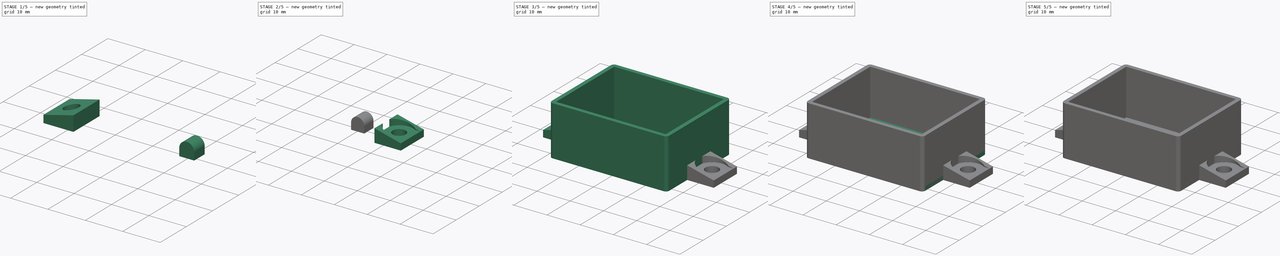
[diagram: build sequence overview — one tinted view per stage of 5, left to right]
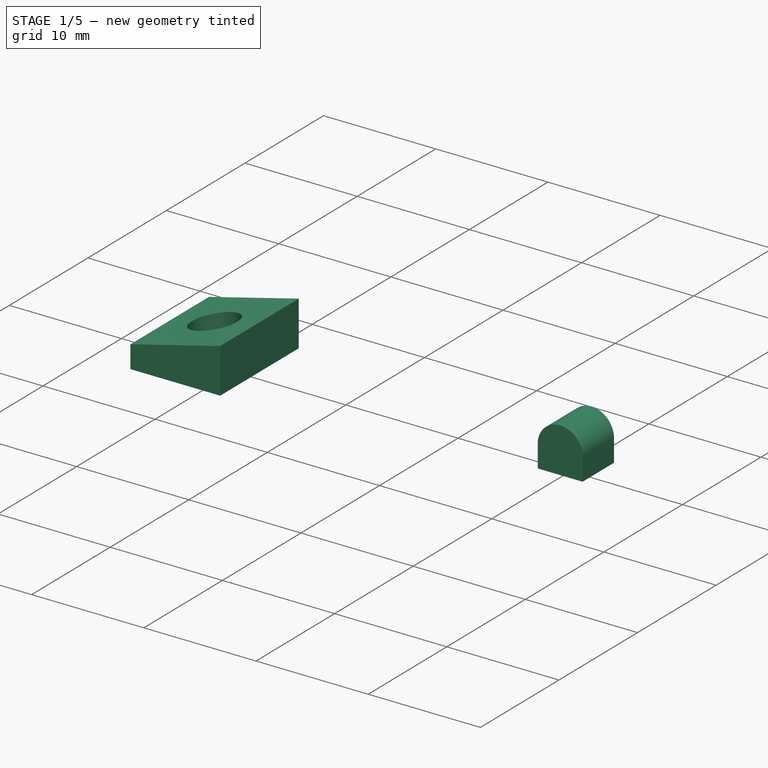
[diagram: stage 1 of 5 — iso view after this stage's code; geometry added in this stage tinted green]
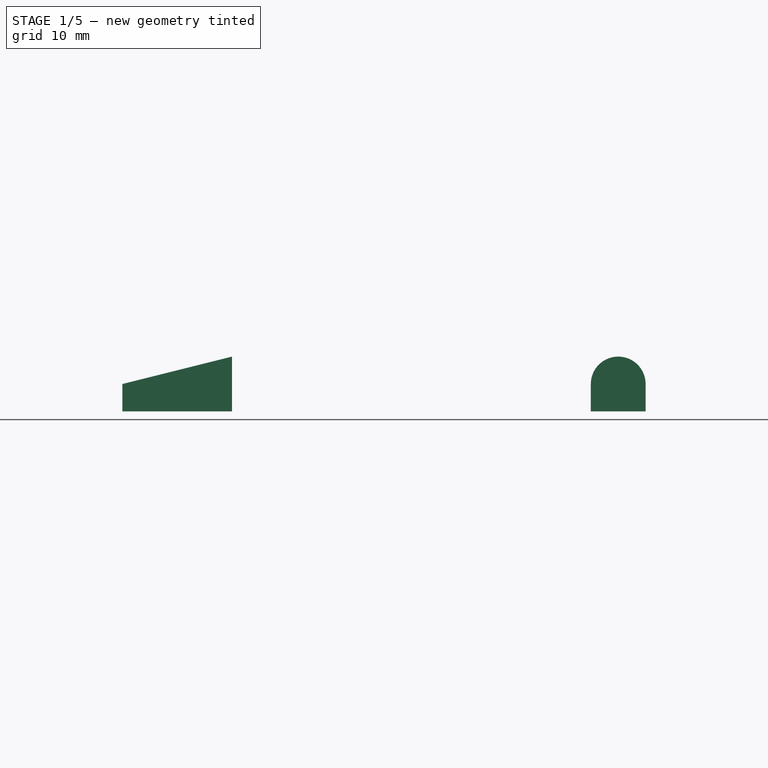
[diagram: stage 1 of 5 — front view after this stage's code; geometry added in this stage tinted green]
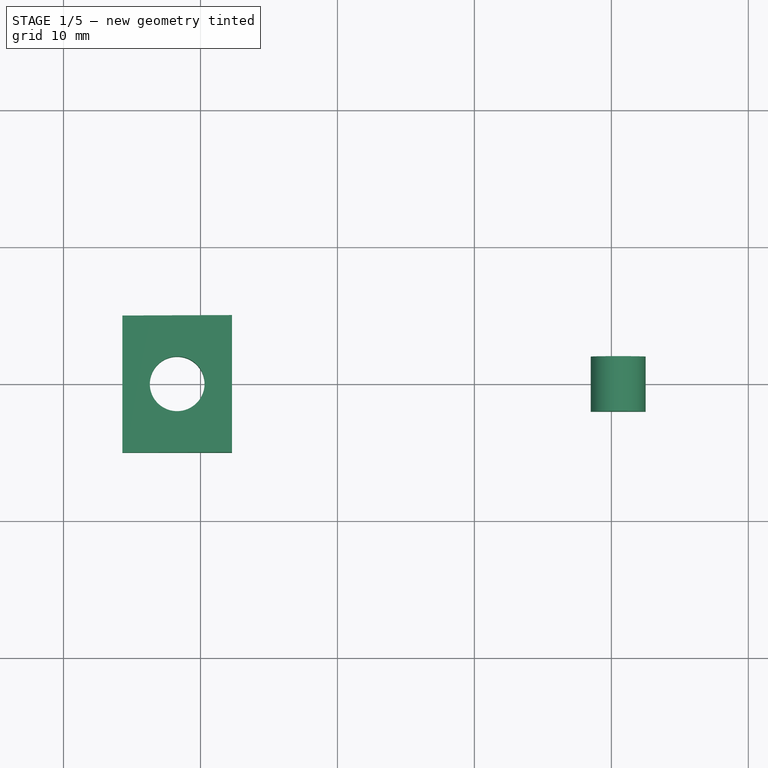
[diagram: stage 1 of 5 — top view after this stage's code; geometry added in this stage tinted green]
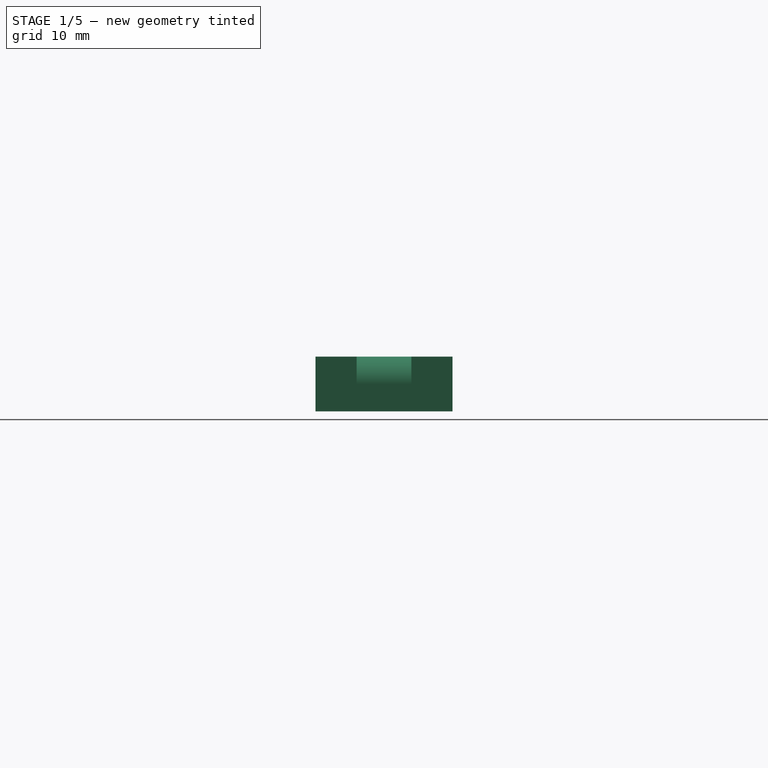
[diagram: stage 1 of 5 — right view after this stage's code; geometry added in this stage tinted green]
FCSTD DOCUMENT  (FreeCAD 0.18.3R)
Label: PirCase01
License: All rights reserved
LicenseURL: http://en.wikipedia.org/wiki/All_rights_reserved
objects: Sketcher::SketchObject×11, PartDesign::Pad×5, PartDesign::Body×4, PartDesign::Pocket×4, PartDesign::Fillet×2, Part::Mirroring×1, Part::MultiFuse×1, PartDesign::PolarPattern×1, Part::Cut×1
note: 39 computed .brp shape members not serialized (recipe doc carries the construction recipe); baked Part::Feature solids carry a one-line shape summary decoded from their .brp

FEATURE [Sketcher::SketchObject] CopySketch001
  Placement = pos=(0,0,0) rot=(1,0,0;1.5708rad)
  expr: Constraints[11] = Sketch.Constraints.largo / 2 + Sketch.Constraints.espesor
  sketch-geometry (4):
    g0: LineSegment StartX=-25.7 StartY=0 StartZ=0 EndX=-25.7 EndY=2 EndZ=0
    g1: LineSegment StartX=-25.7 StartY=2 StartZ=0 EndX=-17.7 EndY=4 EndZ=0
    g2: LineSegment StartX=-17.7 StartY=4 StartZ=0 EndX=-17.7 EndY=0 EndZ=0
    g3: LineSegment StartX=-17.7 StartY=0 StartZ=0 EndX=-25.7 EndY=0 EndZ=0
  constraints (12):
    c: Coincident(g0,g1)
    c: Coincident(g1,g2)
    c: Coincident(g2,g3)
    c: Coincident(g3,g0)
    c: DistanceX(g3,g3) = 8
    c: Perpendicular(g3,g0)
    c: Perpendicular(g3,g2)
    c: Parallel(g-1,g3)
    c: DistanceY(g0,g0) = 2
    c: DistanceY(g2,g2) = 4
    c: PointOnObject(g2,g-1)
    c: DistanceX(g2,g-1) = 17.7
FEATURE [PartDesign::Pad] Pad001
  Length = 10
  Length2 = 100
  Midplane = true
  Placement = pos=(0,0,0) rot=(1,0,0;1.5708rad)
  Profile = -> CopySketch001
  Type = 0
FEATURE [Sketcher::SketchObject] Sketch002
  MapMode = 5
  Placement = pos=(0,3.2e-15,3.24264) rot=(1,0,0;3.14159rad)
FEATURE [PartDesign::Body] Body
  Group = -> [Sketch,Pad,Fillet,Sketch002]
  Origin = -> Origin
  Tip = -> Fillet
FEATURE [Sketcher::SketchObject] Sketch003
  ExternalGeometry = -> [Pad001]
  MapMode = 5
  Placement = pos=(0,0,0) rot=(1,0,0;3.14159rad)
  Support = -> [Pad001]
  sketch-geometry (1):
    g0: Circle CenterX=-21.7 CenterY=3e-16 CenterZ=0 NormalX=0 NormalY=0 NormalZ=1 AngleXU=0 Radius=2
  constraints (2):
    c: Symmetric(g-4,g-3,g0)
    c: Radius(g0) = 2
FEATURE [PartDesign::Pocket] Pocket
  BaseFeature = -> Pad001
  Length = 5
  Length2 = 100
  Placement = pos=(0,0,0) rot=(1,0,0;1.5708rad)
  Profile = -> Sketch003
  Type = 1
FEATURE [PartDesign::Body] Body002  label="Tapa"
  Group = -> [Sketch007,Pad002,Fillet001,Sketch008,Pocket003,Sketch009,Pad003,PolarPattern]
  Origin = -> Origin002
  Placement = pos=(50,0,0) rot=(0,0,1;0rad)
  Tip = -> PolarPattern
FEATURE [Sketcher::SketchObject] Sketch010
  MapMode = 5
  Placement = pos=(0,0,0) rot=(1,0,0;1.5708rad)
  Support = -> [XZ_Plane003]
  expr: Constraints[11] = -(Sketch.Constraints.largo / 2 - 4mm)
  sketch-geometry (4):
    g0: LineSegment StartX=8.5 StartY=2 StartZ=0 EndX=8.5 EndY=-5.6e-15 EndZ=0
    g1: LineSegment StartX=8.5 StartY=-5.5e-15 StartZ=0 EndX=12.5 EndY=-4.1e-15 EndZ=0
    g2: LineSegment StartX=12.5 StartY=-4.1e-15 StartZ=0 EndX=12.5 EndY=2 EndZ=0
    g3: ArcOfCircle CenterX=10.5 CenterY=2 CenterZ=0 NormalX=0 NormalY=0 NormalZ=1 AngleXU=0 Radius=2 StartAngle=-1.95e-14 EndAngle=3.14159
  constraints (12):
    c: Coincident(g0,g1)
    c: Coincident(g1,g2)
    c: Vertical(g0)
    c: Vertical(g2)
    c: DistanceX(g1,g1) = 4
    c: Equal(g0,g2)
    c: DistanceY(g0,g0) = 2
    c: Tangent(g1,g-1)
    c: Coincident(g3,g0)
    c: Coincident(g3,g2)
    c: Distance(g3,g1) = 2
    c: DistanceX(g1,g-1) = -12.5
FEATURE [PartDesign::Pad] Pad004
  Length = 4
  Length2 = 100
  Midplane = true
  Placement = pos=(0,0,0) rot=(1,0,0;1.5708rad)
  Profile = -> Sketch010
  Reversed = true
  Type = 0
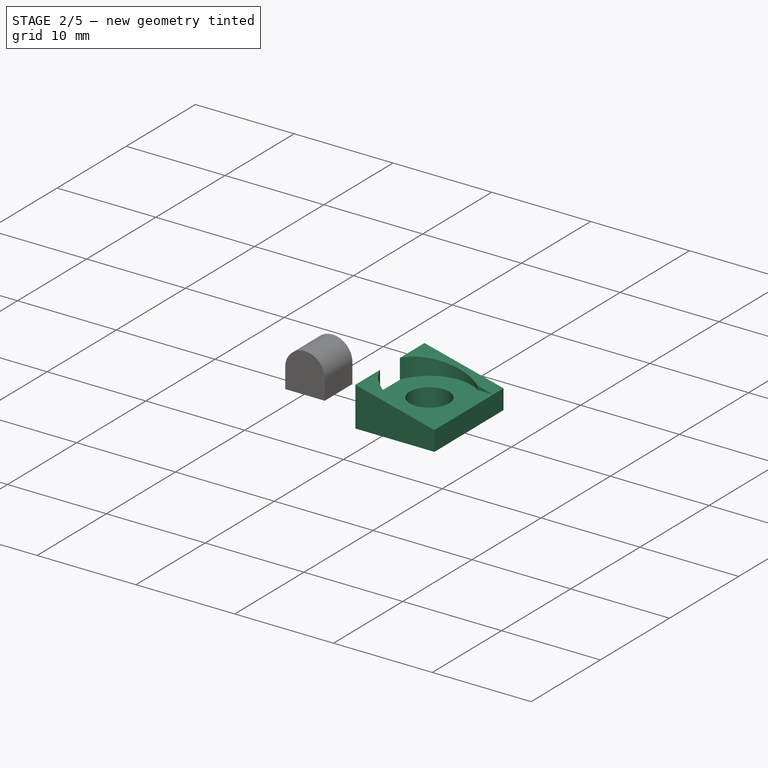
[diagram: stage 2 of 5 — iso view after this stage's code; geometry added in this stage tinted green]
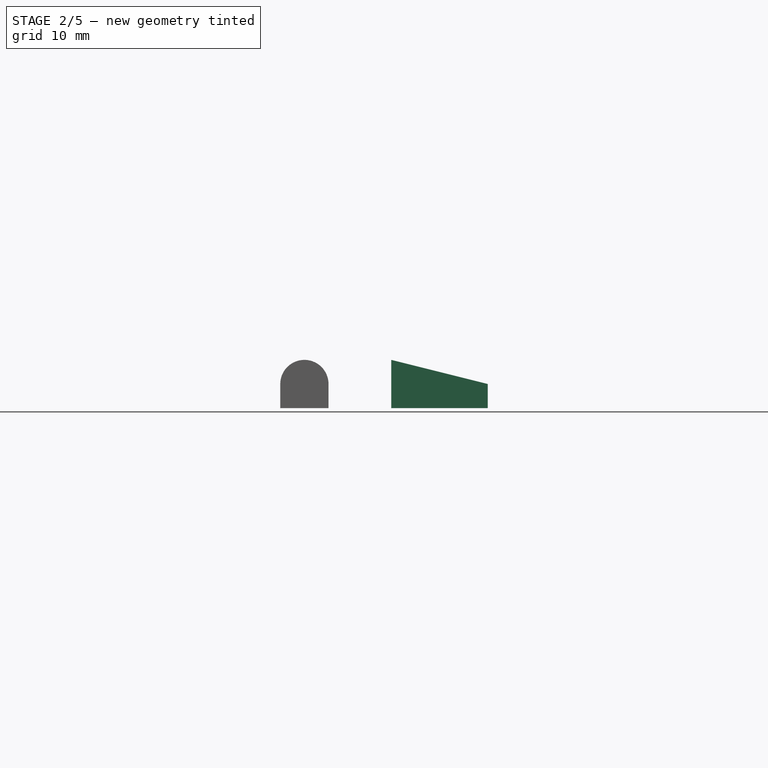
[diagram: stage 2 of 5 — front view after this stage's code; geometry added in this stage tinted green]
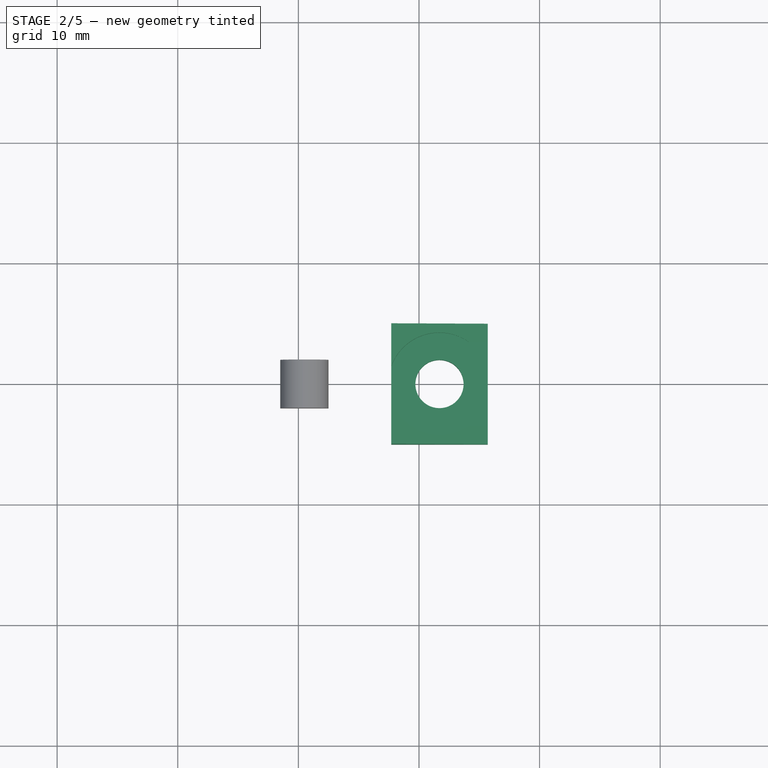
[diagram: stage 2 of 5 — top view after this stage's code; geometry added in this stage tinted green]
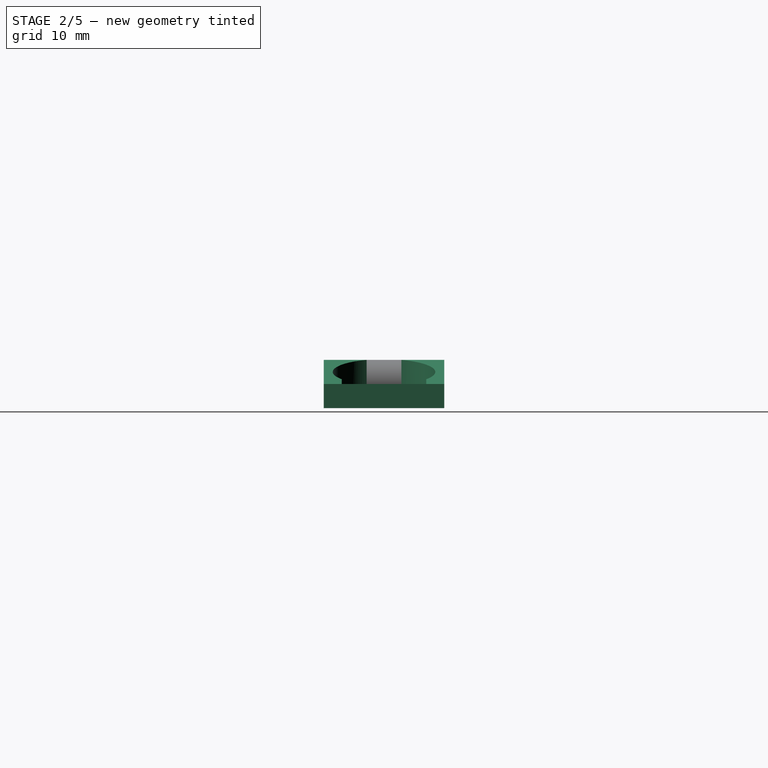
[diagram: stage 2 of 5 — right view after this stage's code; geometry added in this stage tinted green]
FEATURE [Sketcher::SketchObject] Sketch004
  ExternalGeometry = -> [Pocket]
  MapMode = 5
  Placement = pos=(-25.7,0,0) rot=(0.707107,0,-0.707107;3.14159rad)
  Support = -> [Pocket]
  sketch-geometry (4):
    g0: LineSegment StartX=-4 StartY=3.5 StartZ=0 EndX=-2 EndY=3.5 EndZ=0
    g1: LineSegment StartX=-2 StartY=3.5 StartZ=0 EndX=-2 EndY=-3.5 EndZ=0
    g2: LineSegment StartX=-2 StartY=-3.5 StartZ=0 EndX=-4 EndY=-3.5 EndZ=0
    g3: LineSegment StartX=-4 StartY=-3.5 StartZ=0 EndX=-4 EndY=3.5 EndZ=0
  constraints (11):
    c: Coincident(g0,g1)
    c: Coincident(g1,g2)
    c: Coincident(g2,g3)
    c: Coincident(g3,g0)
    c: Horizontal(g0)
    c: Horizontal(g2)
    c: Vertical(g1)
    c: PointOnObject(g0,g-3)
    c: PointOnObject(g0,g-4)
    c: Symmetric(g0,g2,g-1)
    c: DistanceY(g3,g3) = 7
FEATURE [PartDesign::Pocket] Pocket001
  BaseFeature = -> Pocket
  Length = 6
  Length2 = 100
  Placement = pos=(0,0,0) rot=(1,0,0;1.5708rad)
  Profile = -> Sketch004
  Type = 0
FEATURE [Sketcher::SketchObject] Sketch005
  ExternalGeometry = -> [Pocket001]
  MapMode = 5
  Placement = pos=(-4e-16,4e-16,2) rot=(0,0,1;3.14159rad)
  Support = -> [Pocket001]
  sketch-geometry (1):
    g0: Circle CenterX=21.7 CenterY=-1.1e-15 CenterZ=0 NormalX=0 NormalY=0 NormalZ=1 AngleXU=0 Radius=4.25
  constraints (2):
    c: Coincident(g0,g-3)
    c: Radius(g0) = 4.25
FEATURE [PartDesign::Pocket] Pocket002
  BaseFeature = -> Pocket001
  Length = 5
  Length2 = 100
  Placement = pos=(0,0,0) rot=(1,0,0;1.5708rad)
  Profile = -> Sketch005
  Reversed = true
  Type = 1
FEATURE [Sketcher::SketchObject] Sketch006
  MapMode = 5
  Support = -> [XY_Plane001]
FEATURE [PartDesign::Body] Body001
  Group = -> [CopySketch001,Pad001,Sketch003,Pocket,Sketch004,Pocket001,Sketch005,Pocket002,Sketch006]
  Origin = -> Origin001
  Tip = -> Pocket002
FEATURE [Part::Mirroring] Part__Mirroring  label="Body001 (Mirror #1)"
  Base = (0,0,0)
  Normal = (1,0,0)
  Source = -> Body001
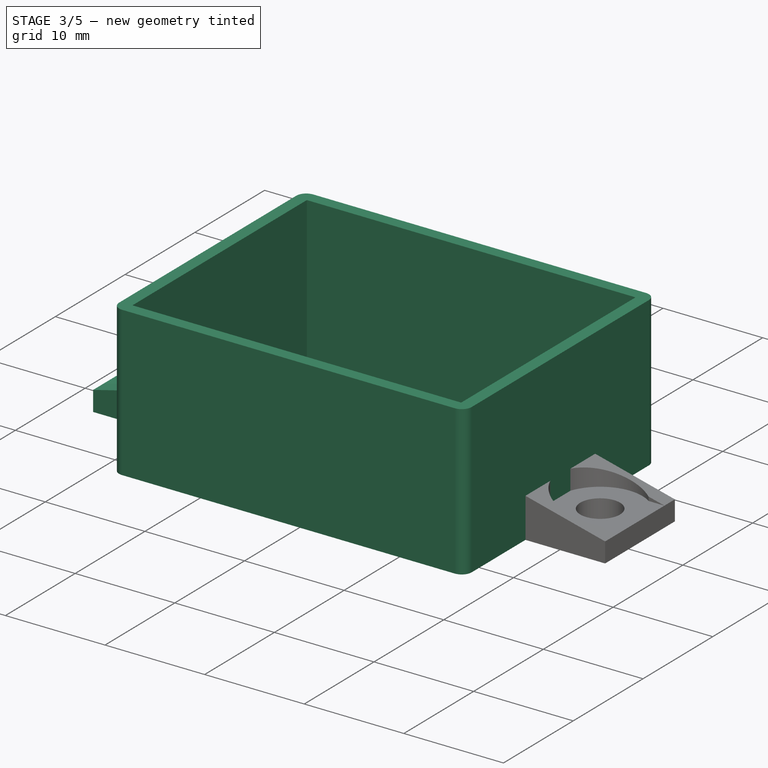
[diagram: stage 3 of 5 — iso view after this stage's code; geometry added in this stage tinted green]
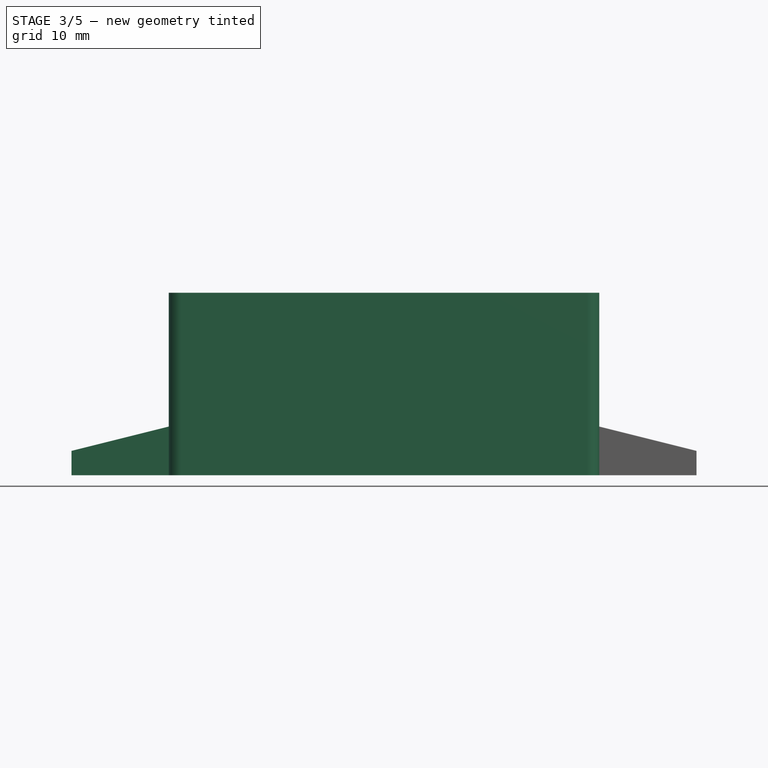
[diagram: stage 3 of 5 — front view after this stage's code; geometry added in this stage tinted green]
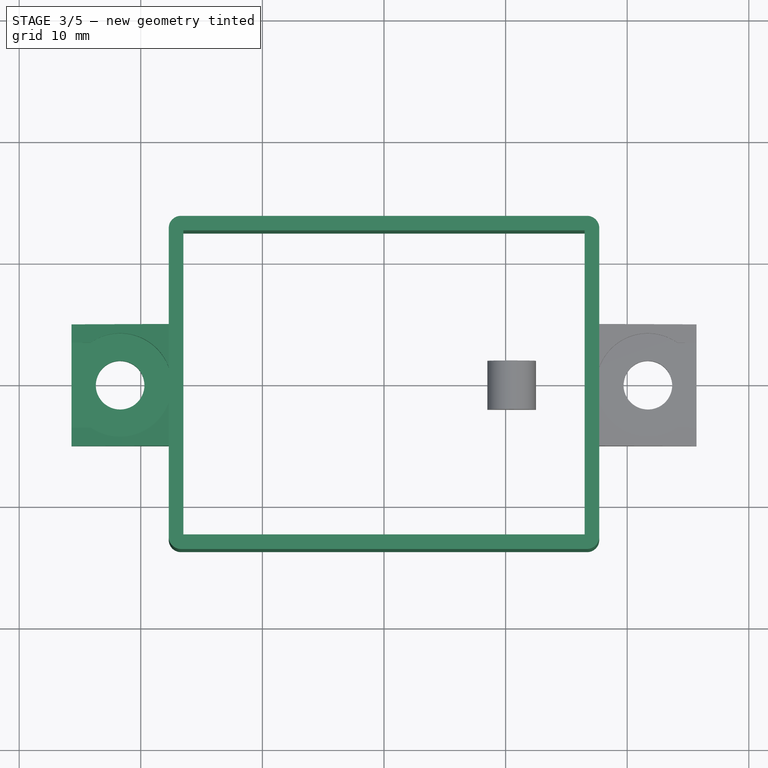
[diagram: stage 3 of 5 — top view after this stage's code; geometry added in this stage tinted green]
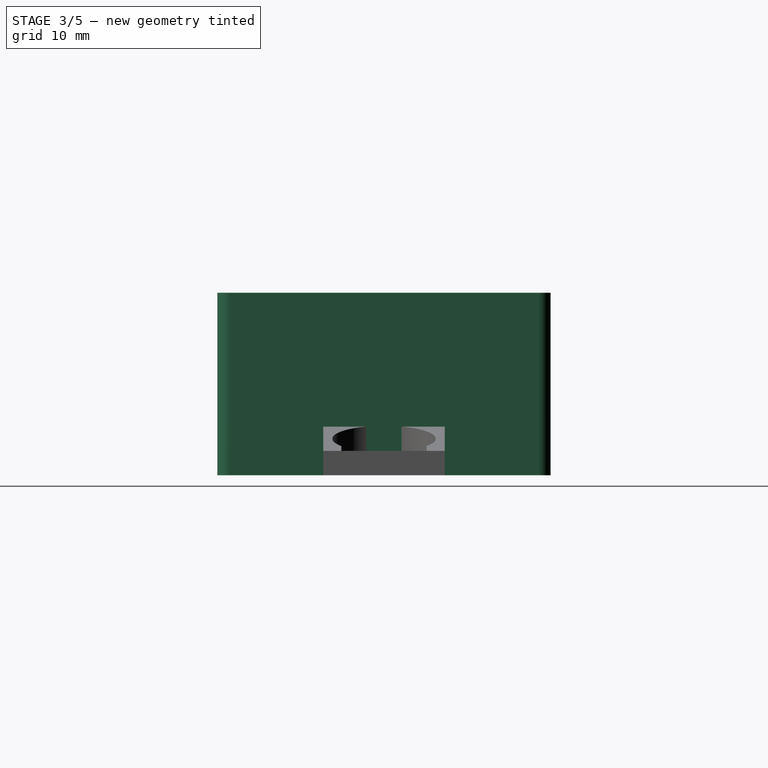
[diagram: stage 3 of 5 — right view after this stage's code; geometry added in this stage tinted green]
FEATURE [Sketcher::SketchObject] Sketch
  MapMode = 5
  Support = -> [XY_Plane]
  expr: Constraints[21] = Constraints.espesor
  sketch-geometry (8):
    g0: LineSegment StartX=-16.5 StartY=12.5 StartZ=0 EndX=16.5 EndY=12.5 EndZ=0
    g1: LineSegment StartX=16.5 StartY=12.5 StartZ=0 EndX=16.5 EndY=-12.5 EndZ=0
    g2: LineSegment StartX=16.5 StartY=-12.5 StartZ=0 EndX=-16.5 EndY=-12.5 EndZ=0
    g3: LineSegment StartX=-16.5 StartY=-12.5 StartZ=0 EndX=-16.5 EndY=12.5 EndZ=0
    g4: LineSegment StartX=-17.7 StartY=13.7 StartZ=0 EndX=17.7 EndY=13.7 EndZ=0
    g5: LineSegment StartX=17.7 StartY=13.7 StartZ=0 EndX=17.7 EndY=-13.7 EndZ=0
    g6: LineSegment StartX=17.7 StartY=-13.7 StartZ=0 EndX=-17.7 EndY=-13.7 EndZ=0
    g7: LineSegment StartX=-17.7 StartY=-13.7 StartZ=0 EndX=-17.7 EndY=13.7 EndZ=0
  constraints (22):
    c: Coincident(g0,g1)
    c: Coincident(g1,g2)
    c: Coincident(g2,g3)
    c: Coincident(g3,g0)
    c: Horizontal(g0)
    c: Horizontal(g2)
    c: Vertical(g1)
    c: Vertical(g3)
    c: Symmetric(g0,g2,g-1)
    c: DistanceX(g0,g0) = 33  'largo'
    c: DistanceY(g3,g3) = 25  'ancho'
    c: Coincident(g4,g5)
    c: Coincident(g5,g6)
    c: Coincident(g6,g7)
    c: Coincident(g7,g4)
    c: Horizontal(g4)
    c: Horizontal(g6)
    c: Vertical(g5)
    c: Vertical(g7)
    c: Symmetric(g4,g6,g-1)
    c: DistanceX(g0,g4) = 1.2  'espesor'
    c: DistanceY(g0,g4) = 1.2
FEATURE [PartDesign::Pad] Pad
  Length = 15
  Length2 = 100
  Profile = -> Sketch
  Type = 0
FEATURE [PartDesign::Fillet] Fillet
  Base = -> Pad [Edge1,Edge8,Edge2,Edge5]
  BaseFeature = -> Pad
  Radius = 1
FEATURE [Part::MultiFuse] Fusion
  Shapes = -> [Part__Mirroring,Body001,Pocket002,Body,Fillet]
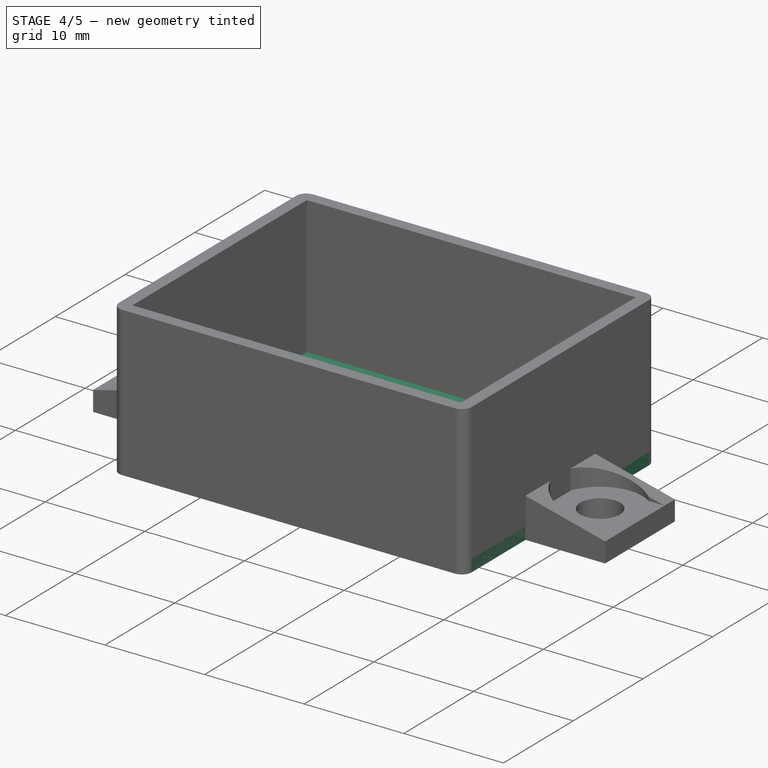
[diagram: stage 4 of 5 — iso view after this stage's code; geometry added in this stage tinted green]
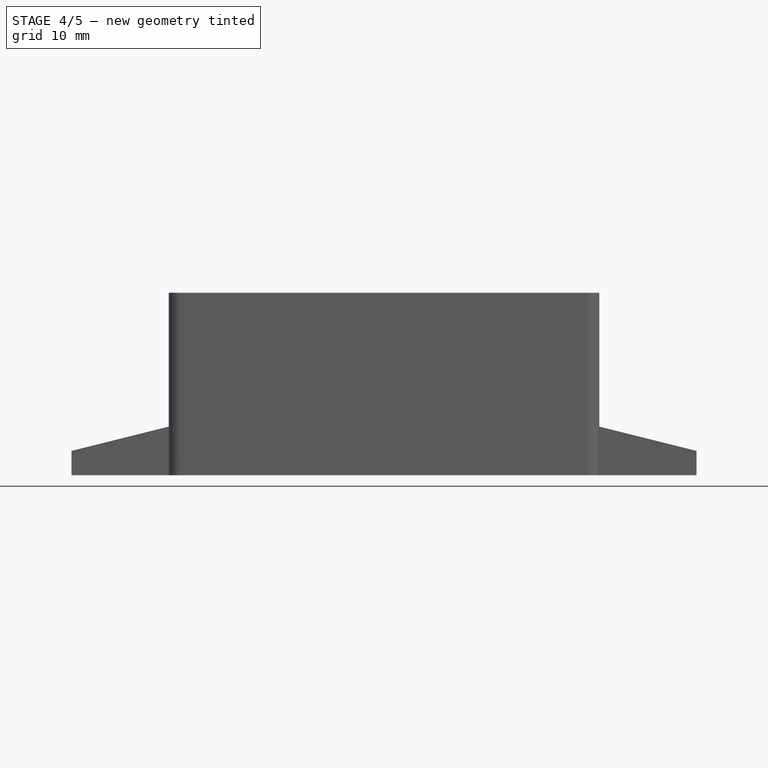
[diagram: stage 4 of 5 — front view after this stage's code; geometry added in this stage tinted green]
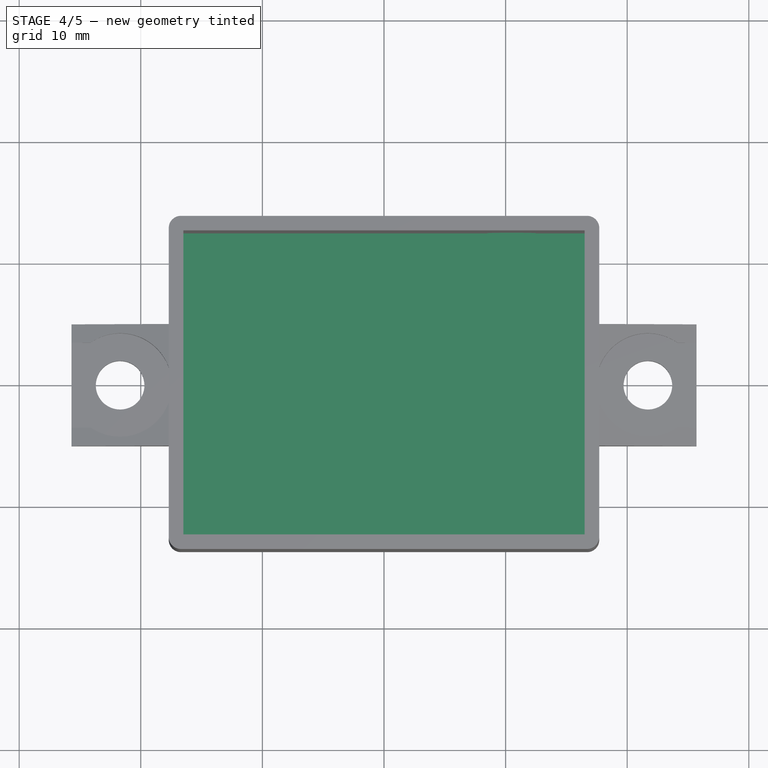
[diagram: stage 4 of 5 — top view after this stage's code; geometry added in this stage tinted green]
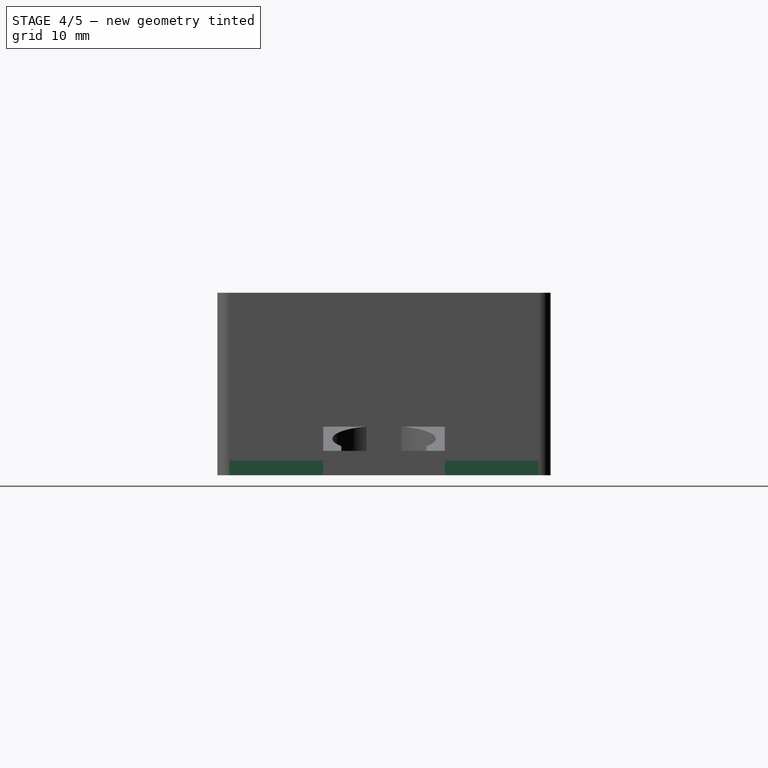
[diagram: stage 4 of 5 — right view after this stage's code; geometry added in this stage tinted green]
FEATURE [Sketcher::SketchObject] Sketch007
  MapMode = 5
  Support = -> [XY_Plane002]
  expr: Constraints[9] = Sketch.Constraints.ancho + 2 * Sketch.Constraints.espesor
  expr: Constraints[8] = Sketch.Constraints.largo + 2 * Sketch.Constraints.espesor
  sketch-geometry (4):
    g0: LineSegment StartX=-17.7 StartY=13.7 StartZ=0 EndX=17.7 EndY=13.7 EndZ=0
    g1: LineSegment StartX=17.7 StartY=13.7 StartZ=0 EndX=17.7 EndY=-13.7 EndZ=0
    g2: LineSegment StartX=17.7 StartY=-13.7 StartZ=0 EndX=-17.7 EndY=-13.7 EndZ=0
    g3: LineSegment StartX=-17.7 StartY=-13.7 StartZ=0 EndX=-17.7 EndY=13.7 EndZ=0
  constraints (11):
    c: Coincident(g0,g1)
    c: Coincident(g1,g2)
    c: Coincident(g2,g3)
    c: Coincident(g3,g0)
    c: Horizontal(g0)
    c: Horizontal(g2)
    c: Vertical(g1)
    c: Vertical(g3)
    c: DistanceX(g0,g0) = 35.4
    c: DistanceY(g1,g1) = 27.4
    c: Symmetric(g0,g1,g-1)
FEATURE [PartDesign::Pad] Pad002
  Length = 1.2
  Length2 = 100
  Profile = -> Sketch007
  Type = 0
FEATURE [PartDesign::Fillet] Fillet001
  Base = -> Pad002 [Edge8,Edge5,Edge2,Edge1]
  BaseFeature = -> Pad002
  Radius = 1
FEATURE [PartDesign::Body] Body003
  Group = -> [Sketch010,Pad004]
  Origin = -> Origin003
  Placement = pos=(0,12.5,0) rot=(0,0,1;0rad)
  Tip = -> Pad004
  expr: Placement.Base.y = Sketch.Constraints.ancho / 2
FEATURE [Part::Cut] Cut
  Base = -> Fusion
  Tool = -> Body003
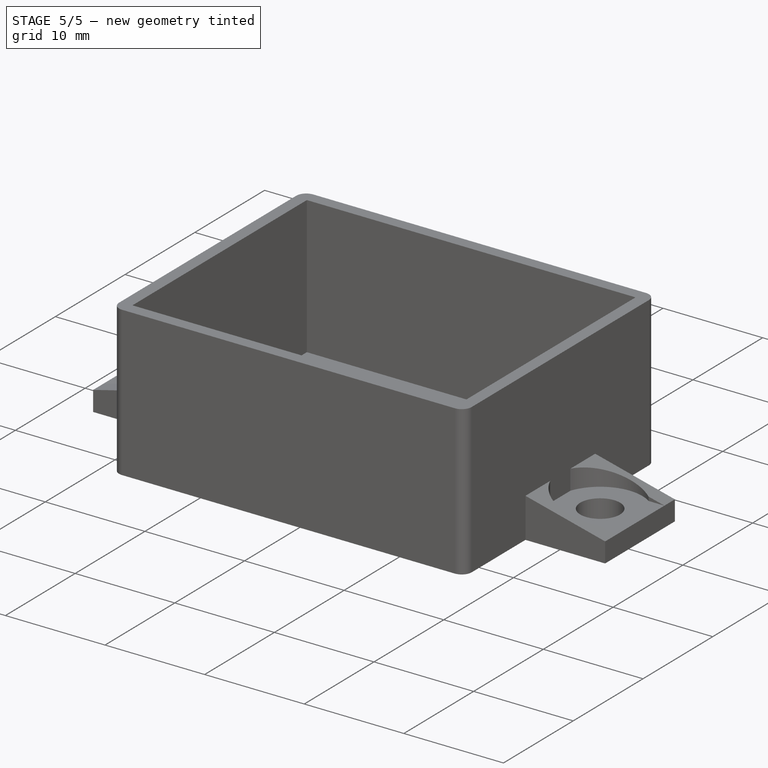
[diagram: stage 5 of 5 — iso view after this stage's code; geometry added in this stage tinted green]
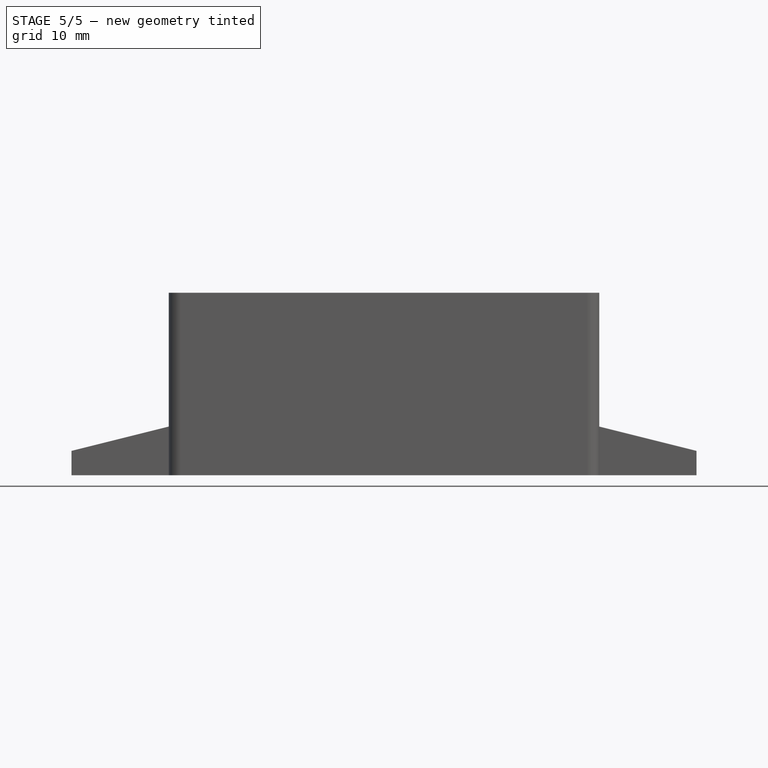
[diagram: stage 5 of 5 — front view after this stage's code; geometry added in this stage tinted green]
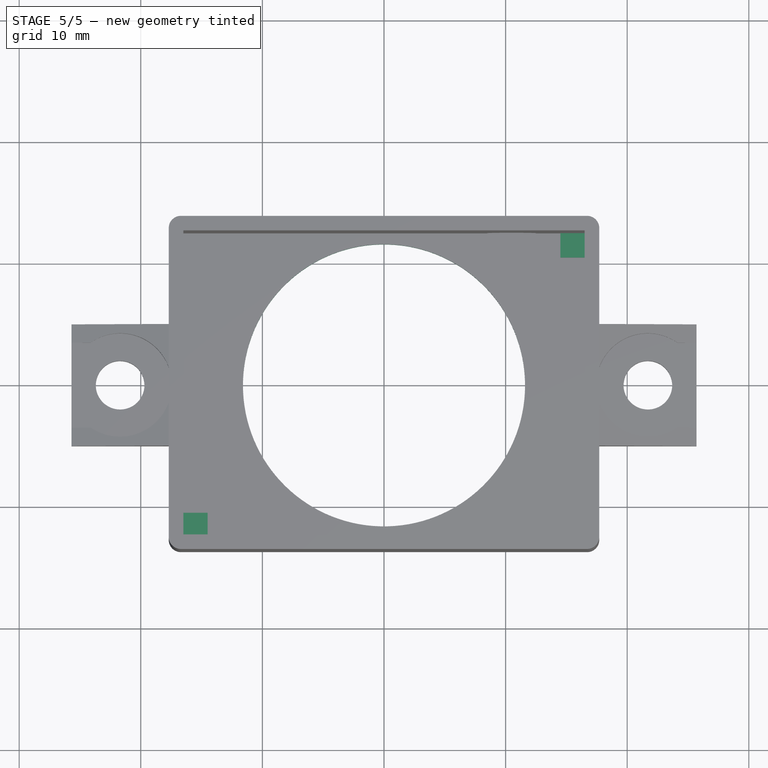
[diagram: stage 5 of 5 — top view after this stage's code; geometry added in this stage tinted green]
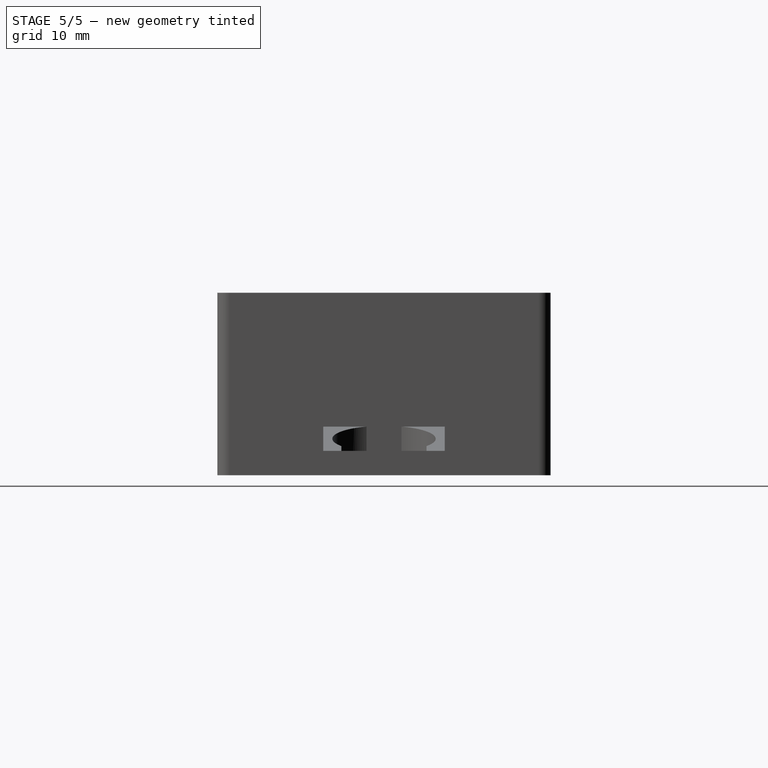
[diagram: stage 5 of 5 — right view after this stage's code; geometry added in this stage tinted green]
FEATURE [Sketcher::SketchObject] Sketch008
  MapMode = 5
  Placement = pos=(0,0,1.2) rot=(0,0,1;0rad)
  Support = -> [Fillet001]
  sketch-geometry (1):
    g0: Circle CenterX=0 CenterY=0 CenterZ=0 NormalX=0 NormalY=0 NormalZ=1 AngleXU=0 Radius=11.6
  constraints (2):
    c: Radius(g0) = 11.6
    c: Coincident(g-1,g0)
FEATURE [PartDesign::Pocket] Pocket003
  BaseFeature = -> Fillet001
  Length = 5
  Length2 = 100
  Profile = -> Sketch008
  Type = 1
FEATURE [Sketcher::SketchObject] Sketch009
  MapMode = 5
  Placement = pos=(0,0,1.2) rot=(0,0,1;0rad)
  Support = -> [Pocket003]
  expr: Constraints[20] = Sketch.Constraints.ancho
  expr: Constraints[19] = Sketch.Constraints.largo
  sketch-geometry (8):
    g0: LineSegment StartX=-16.5 StartY=-10.5 StartZ=0 EndX=-14.5 EndY=-10.5 EndZ=0
    g1: LineSegment StartX=-14.5 StartY=-10.5 StartZ=0 EndX=-14.5 EndY=-12.5 EndZ=0
    g2: LineSegment StartX=-14.5 StartY=-12.5 StartZ=0 EndX=-16.5 EndY=-12.5 EndZ=0
    g3: LineSegment StartX=-16.5 StartY=-12.5 StartZ=0 EndX=-16.5 EndY=-10.5 EndZ=0
    g4: LineSegment [constr] StartX=-16.5 StartY=12.5 StartZ=0 EndX=16.5 EndY=12.5 EndZ=0
    g5: LineSegment [constr] StartX=16.5 StartY=12.5 StartZ=0 EndX=16.5 EndY=-12.5 EndZ=0
    g6: LineSegment [constr] StartX=16.5 StartY=-12.5 StartZ=0 EndX=-16.5 EndY=-12.5 EndZ=0
    g7: LineSegment [constr] StartX=-16.5 StartY=-12.5 StartZ=0 EndX=-16.5 EndY=12.5 EndZ=0
  constraints (22):
    c: Coincident(g0,g1)
    c: Coincident(g1,g2)
    c: Coincident(g2,g3)
    c: Coincident(g3,g0)
    c: Horizontal(g0)
    c: Horizontal(g2)
    c: Vertical(g1)
    c: Vertical(g3)
    c: Equal(g0,g1)
    c: DistanceX(g2,g2) = 2
    c: Coincident(g4,g5)
    c: Coincident(g5,g6)
    c: Coincident(g6,g7)
    c: Coincident(g7,g4)
    c: Horizontal(g4)
    c: Horizontal(g6)
    c: Vertical(g5)
    c: Vertical(g7)
    c: Symmetric(g4,g5,g-1)
    c: DistanceX(g4,g4) = 33
    c: DistanceY(g7,g7) = 25
    c: Coincident(g2,g6)
FEATURE [PartDesign::Pad] Pad003
  BaseFeature = -> Pocket003
  Length = 1
  Length2 = 100
  Profile = -> Sketch009
  Type = 0
FEATURE [PartDesign::PolarPattern] PolarPattern
  Angle = 360
  Axis = -> Sketch009 [N_Axis]
  BaseFeature = -> Pad003
  Occurrences = 2
  Originals = -> [Pad003]
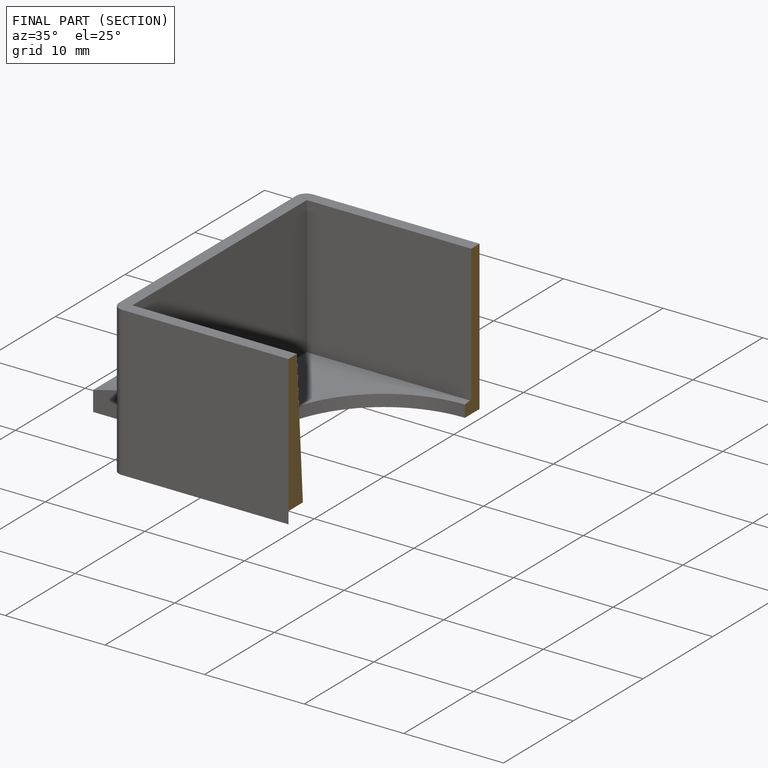
[diagram: finished part — half-section view (interior)]
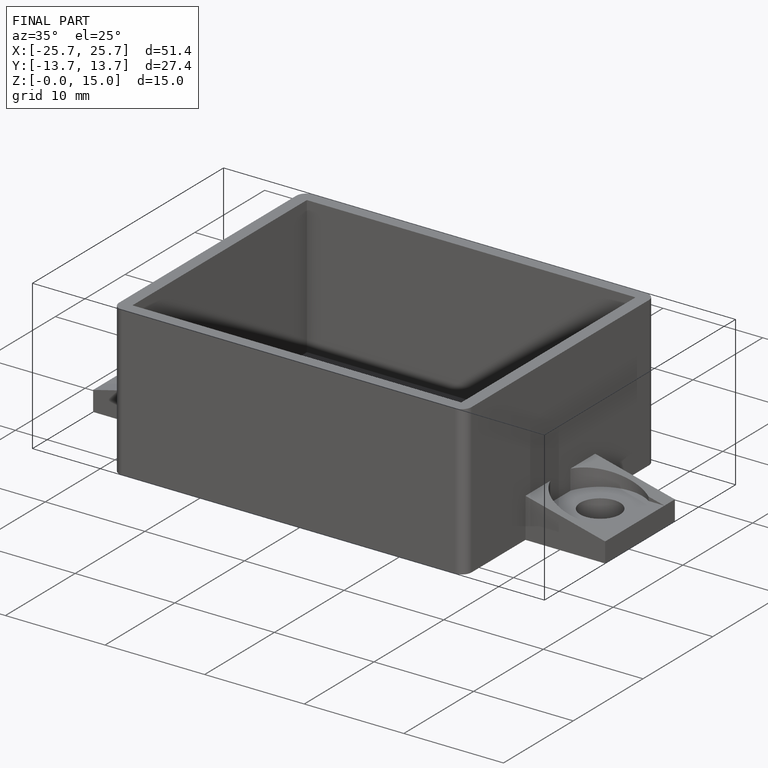
[diagram: finished part — iso view with bounding-box wireframe]
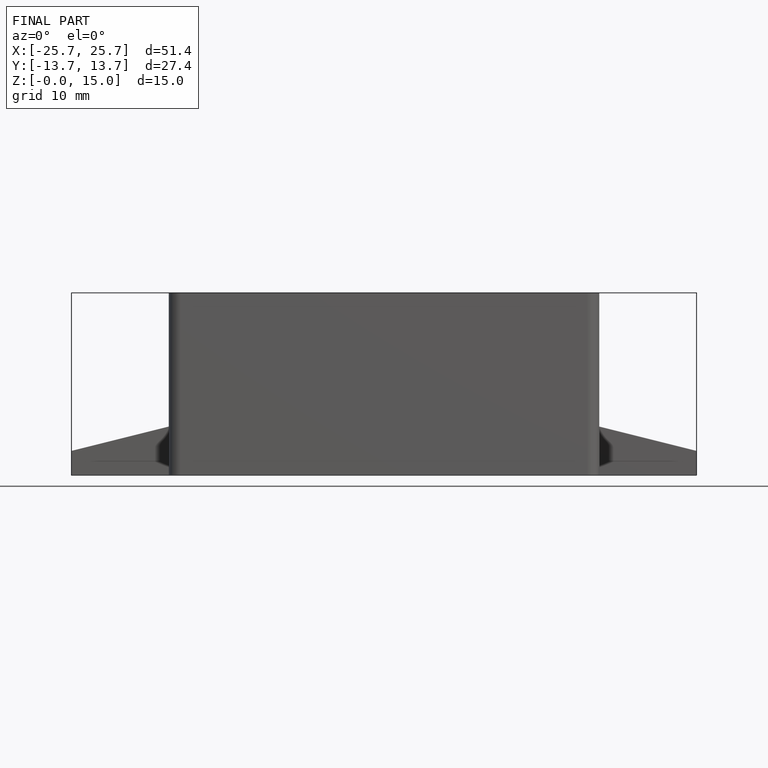
[diagram: finished part — front view with bounding-box wireframe]
